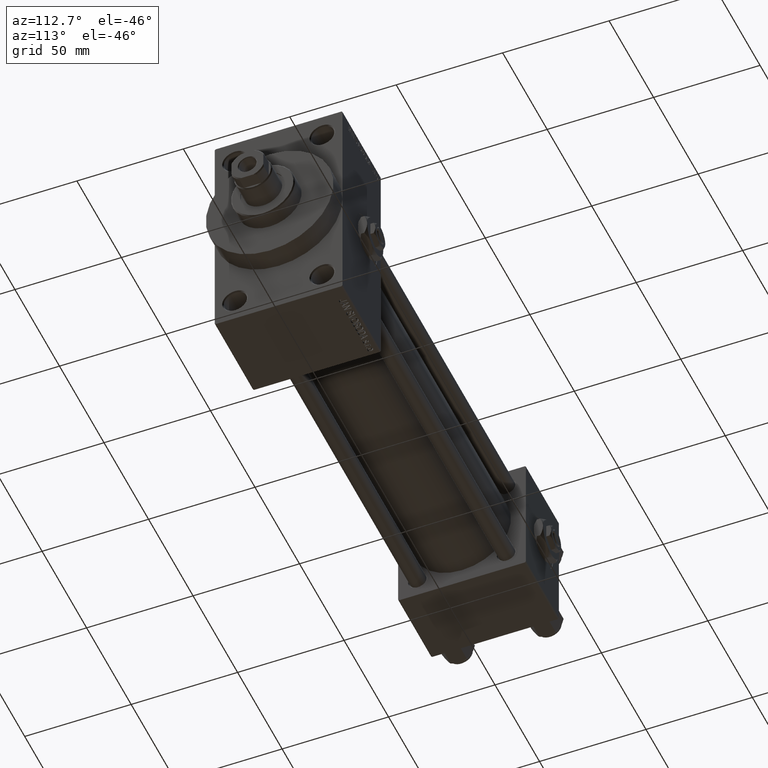
[diagram: clean part render]
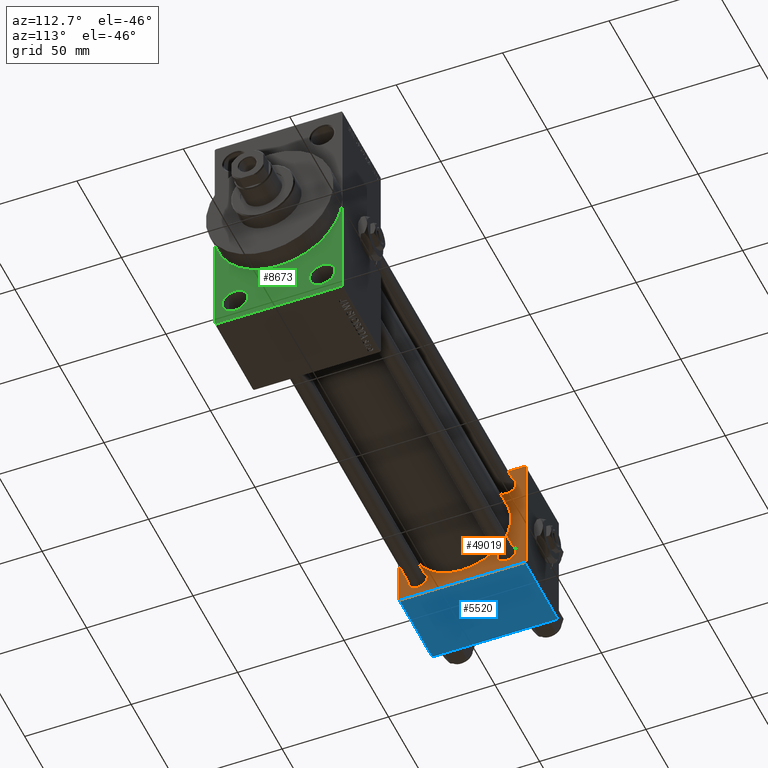
[diagram: same view with three faces highlighted in distinct colors, each labeled with its STEP entity id]
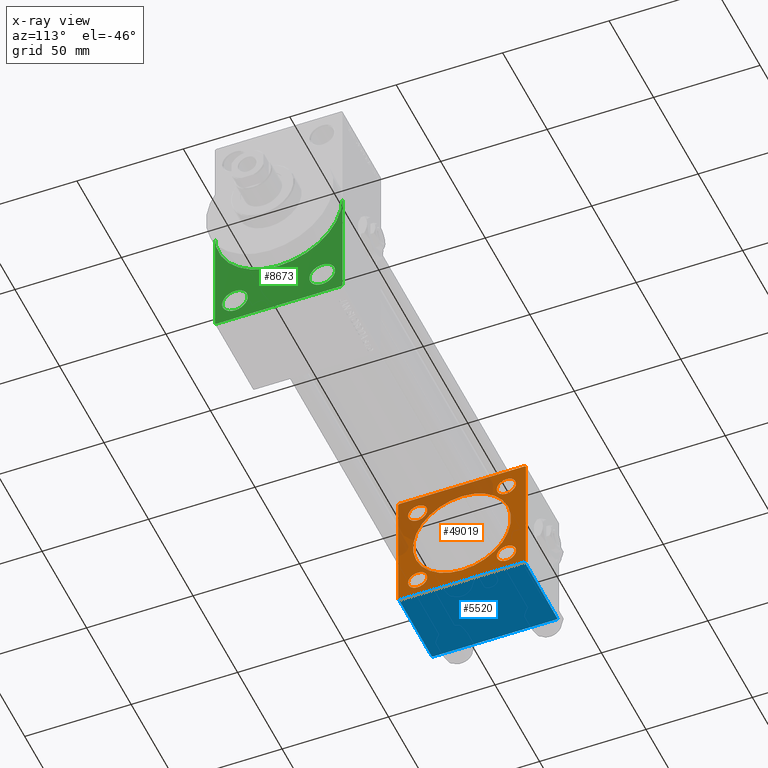
[diagram: x-ray of the same camera — body ghosted, the three highlighted faces saturated]
A machine part, auxiliary view with three faces highlighted in distinct colors.
The next image is the same camera in x-ray (body ghosted, the three faces saturated) — at least one of them is partly hidden behind the body in this view.
Their STEP definitions:

[orange] entity #49019 — the highlighted planar face has unit normal (-1, 0, 0).
#748 = CARTESIAN_POINT ( 'NONE',  ( 37.00000000000000000, -30.00000000000000000, 29.49999999999999289 ) ) ;
#850 = VERTEX_POINT ( 'NONE', #35365 ) ;
#979 = FACE_BOUND ( 'NONE', #18773, .T. ) ;
#1287 = ORIENTED_EDGE ( 'NONE', *, *, #7142, .T. ) ;
#1296 = DIRECTION ( 'NONE',  ( 1.000000000000000000, -0.000000000000000000, 0.000000000000000000 ) ) ;
#1733 = ORIENTED_EDGE ( 'NONE', *, *, #12668, .T. ) ;
#1964 = AXIS2_PLACEMENT_3D ( 'NONE', #48222, #40753, #33274 ) ;
#1965 = EDGE_CURVE ( 'NONE', #7538, #12054, #40691, .T. ) ;
#2868 = AXIS2_PLACEMENT_3D ( 'NONE', #37141, #21422, #2986 ) ;
#2986 = DIRECTION ( 'NONE',  ( 0.000000000000000000, 0.000000000000000000, 1.000000000000000000 ) ) ;
#3420 = CIRCLE ( 'NONE', #48796, 4.500000000000031974 ) ;
#3482 = VECTOR ( 'NONE', #7258, 1000.000000000000114 ) ;
#3817 = VERTEX_POINT ( 'NONE', #4821 ) ;
#3982 = ORIENTED_EDGE ( 'NONE', *, *, #12769, .T. ) ;
#4046 = CARTESIAN_POINT ( 'NONE',  ( 37.00000000000000000, 20.84999999999999787, 20.85000000000000142 ) ) ;
#4456 = CIRCLE ( 'NONE', #10852, 4.500000000000031974 ) ;
#4821 = CARTESIAN_POINT ( 'NONE',  ( 37.00000000000000000, 20.84999999999999787, 25.35000000000003340 ) ) ;
#4964 = DIRECTION ( 'NONE',  ( -0.000000000000000000, 0.000000000000000000, 1.000000000000000000 ) ) ;
#5207 = CARTESIAN_POINT ( 'NONE',  ( 37.00000000000000000, -30.00000000000000000, -29.50000000000001776 ) ) ;
#5758 = ORIENTED_EDGE ( 'NONE', *, *, #40928, .T. ) ;
#6653 = CARTESIAN_POINT ( 'NONE',  ( 37.00000000000000000, 20.84999999999999787, -25.35000000000003340 ) ) ;
#7066 = CARTESIAN_POINT ( 'NONE',  ( 37.00000000000000000, -20.84999999999999076, -25.35000000000003695 ) ) ;
#7142 = EDGE_CURVE ( 'NONE', #43068, #7575, #3420, .T. ) ;
#7258 = DIRECTION ( 'NONE',  ( -0.000000000000000000, -0.7071067811865474617, -0.7071067811865474617 ) ) ;
#7370 = DIRECTION ( 'NONE',  ( 0.000000000000000000, 0.000000000000000000, 1.000000000000000000 ) ) ;
#7448 = ORIENTED_EDGE ( 'NONE', *, *, #47278, .T. ) ;
#7538 = VERTEX_POINT ( 'NONE', #20046 ) ;
#7575 = VERTEX_POINT ( 'NONE', #7066 ) ;
#7765 = DIRECTION ( 'NONE',  ( -1.000000000000000000, 0.000000000000000000, -0.000000000000000000 ) ) ;
#8340 = VERTEX_POINT ( 'NONE', #36227 ) ;
#8417 = VERTEX_POINT ( 'NONE', #10578 ) ;
#8713 = EDGE_CURVE ( 'NONE', #8340, #8417, #10622, .T. ) ;
#8767 = CIRCLE ( 'NONE', #43661, 4.500000000000031974 ) ;
#8944 = EDGE_CURVE ( 'NONE', #39953, #7538, #34899, .T. ) ;
#8964 = CARTESIAN_POINT ( 'NONE',  ( 37.00000000000000000, 20.84999999999999787, -16.34999999999996945 ) ) ;
#9199 = ORIENTED_EDGE ( 'NONE', *, *, #34788, .F. ) ;
#9294 = CIRCLE ( 'NONE', #31608, 4.500000000000031974 ) ;
#9489 = VERTEX_POINT ( 'NONE', #6653 ) ;
#10099 = ORIENTED_EDGE ( 'NONE', *, *, #29064, .T. ) ;
#10532 = DIRECTION ( 'NONE',  ( 0.000000000000000000, 0.000000000000000000, -1.000000000000000000 ) ) ;
#10578 = CARTESIAN_POINT ( 'NONE',  ( 37.00000000000000711, 2.146024240737016609E-16, -23.00000000000000000 ) ) ;
#10622 = CIRCLE ( 'NONE', #46432, 23.00000000000000000 ) ;
#10817 = CARTESIAN_POINT ( 'NONE',  ( 37.00000000000000000, -20.84999999999999076, 25.35000000000003695 ) ) ;
#10852 = AXIS2_PLACEMENT_3D ( 'NONE', #23053, #34763, #7370 ) ;
#11328 = VECTOR ( 'NONE', #10532, 1000.000000000000000 ) ;
#11403 = CARTESIAN_POINT ( 'NONE',  ( 37.00000000000000000, 20.84999999999999787, 20.85000000000000142 ) ) ;
#11803 = DIRECTION ( 'NONE',  ( -1.000000000000000000, 0.000000000000000000, -0.000000000000000000 ) ) ;
#12054 = VERTEX_POINT ( 'NONE', #5207 ) ;
#12456 = FACE_BOUND ( 'NONE', #36550, .T. ) ;
#12668 = EDGE_CURVE ( 'NONE', #13680, #39646, #44991, .T. ) ;
#12720 = CARTESIAN_POINT ( 'NONE',  ( 37.00000000000000000, -20.84999999999999076, -16.34999999999997300 ) ) ;
#12769 = EDGE_CURVE ( 'NONE', #850, #45823, #30509, .T. ) ;
#13292 = ORIENTED_EDGE ( 'NONE', *, *, #15641, .T. ) ;
#13680 = VERTEX_POINT ( 'NONE', #47053 ) ;
#13838 = CARTESIAN_POINT ( 'NONE',  ( 37.00000000000000000, -29.50000000000001066, -30.00000000000000711 ) ) ;
#14065 = EDGE_CURVE ( 'NONE', #850, #41661, #29974, .T. ) ;
#14091 = DIRECTION ( 'NONE',  ( 0.000000000000000000, 0.7071067811865474617, -0.7071067811865474617 ) ) ;
#14253 = DIRECTION ( 'NONE',  ( -1.000000000000000000, 0.000000000000000000, -0.000000000000000000 ) ) ;
#14285 = AXIS2_PLACEMENT_3D ( 'NONE', #4046, #39182, #19981 ) ;
#15382 = DIRECTION ( 'NONE',  ( -1.000000000000000000, 0.000000000000000000, -0.000000000000000000 ) ) ;
#15571 = CARTESIAN_POINT ( 'NONE',  ( 37.00000000000000000, 29.49999999999999289, 30.00000000000000000 ) ) ;
#15614 = DIRECTION ( 'NONE',  ( -1.000000000000000000, 0.000000000000000000, -0.000000000000000000 ) ) ;
#15641 = EDGE_CURVE ( 'NONE', #24818, #9489, #29931, .T. ) ;
#16185 = CARTESIAN_POINT ( 'NONE',  ( 37.00000000000000000, 0.000000000000000000, 0.000000000000000000 ) ) ;
#16335 = LINE ( 'NONE', #35040, #31917 ) ;
#16664 = FACE_BOUND ( 'NONE', #36701, .T. ) ;
#16726 = DIRECTION ( 'NONE',  ( 0.000000000000000000, -1.000000000000000000, -1.156482317317871725E-16 ) ) ;
#16747 = ORIENTED_EDGE ( 'NONE', *, *, #26494, .T. ) ;
#16960 = EDGE_LOOP ( 'NONE', ( #1733, #10099 ) ) ;
#17450 = CARTESIAN_POINT ( 'NONE',  ( 37.00000000000000000, 29.99999999999999289, 30.00000000000000000 ) ) ;
#17451 = AXIS2_PLACEMENT_3D ( 'NONE', #25223, #14253, #44674 ) ;
#18266 = CIRCLE ( 'NONE', #14285, 4.500000000000031974 ) ;
#18773 = EDGE_LOOP ( 'NONE', ( #16747, #1287 ) ) ;
#19224 = DIRECTION ( 'NONE',  ( 0.000000000000000000, -1.000000000000000000, -1.156482317317871725E-16 ) ) ;
#19277 = DIRECTION ( 'NONE',  ( -0.000000000000000000, 0.7071067811865574537, 0.7071067811865376918 ) ) ;
#19912 = ORIENTED_EDGE ( 'NONE', *, *, #8944, .T. ) ;
#19981 = DIRECTION ( 'NONE',  ( 0.000000000000000000, 0.000000000000000000, 1.000000000000000000 ) ) ;
#20046 = CARTESIAN_POINT ( 'NONE',  ( 37.00000000000000000, -30.00000000000000000, 29.49999999999999289 ) ) ;
#20713 = LINE ( 'NONE', #17450, #40551 ) ;
#20865 = EDGE_CURVE ( 'NONE', #9489, #24818, #4456, .T. ) ;
#21422 = DIRECTION ( 'NONE',  ( 1.000000000000000000, -0.000000000000000000, 0.000000000000000000 ) ) ;
#21990 = CARTESIAN_POINT ( 'NONE',  ( 37.00000000000000000, 29.99999999999999289, -30.00000000000000000 ) ) ;
#23053 = CARTESIAN_POINT ( 'NONE',  ( 37.00000000000000000, 20.84999999999999787, -20.85000000000000142 ) ) ;
#23571 = DIRECTION ( 'NONE',  ( 0.000000000000000000, 0.000000000000000000, -1.000000000000000000 ) ) ;
#23666 = FACE_BOUND ( 'NONE', #16960, .T. ) ;
#23909 = FACE_OUTER_BOUND ( 'NONE', #42416, .T. ) ;
#24470 = VERTEX_POINT ( 'NONE', #15571 ) ;
#24818 = VERTEX_POINT ( 'NONE', #8964 ) ;
#25223 = CARTESIAN_POINT ( 'NONE',  ( 37.00000000000000000, 20.84999999999999787, -20.85000000000000142 ) ) ;
#25421 = EDGE_LOOP ( 'NONE', ( #44458, #13292 ) ) ;
#25467 = ORIENTED_EDGE ( 'NONE', *, *, #45635, .T. ) ;
#26032 = CARTESIAN_POINT ( 'NONE',  ( 37.00000000000000000, 29.99999999999999289, -29.50000000000000000 ) ) ;
#26215 = DIRECTION ( 'NONE',  ( 0.000000000000000000, 0.000000000000000000, 1.000000000000000000 ) ) ;
#26494 = EDGE_CURVE ( 'NONE', #7575, #43068, #46883, .T. ) ;
#27235 = EDGE_CURVE ( 'NONE', #3817, #43162, #18266, .T. ) ;
#27354 = EDGE_CURVE ( 'NONE', #24470, #39953, #20713, .T. ) ;
#27356 = CARTESIAN_POINT ( 'NONE',  ( 37.00000000000000000, 29.99999999999999289, 29.50000000000000000 ) ) ;
#27406 = PLANE ( 'NONE',  #48448 ) ;
#27653 = DIRECTION ( 'NONE',  ( 0.000000000000000000, -0.7071067811865474617, 0.7071067811865474617 ) ) ;
#27898 = CARTESIAN_POINT ( 'NONE',  ( 37.00000000000000000, 29.49999999999999289, 30.00000000000000000 ) ) ;
#28210 = ORIENTED_EDGE ( 'NONE', *, *, #27235, .T. ) ;
#28546 = VERTEX_POINT ( 'NONE', #27356 ) ;
#29064 = EDGE_CURVE ( 'NONE', #39646, #13680, #8767, .T. ) ;
#29433 = ORIENTED_EDGE ( 'NONE', *, *, #44109, .F. ) ;
#29931 = CIRCLE ( 'NONE', #17451, 4.500000000000031974 ) ;
#29974 = LINE ( 'NONE', #21990, #38640 ) ;
#30509 = LINE ( 'NONE', #26032, #42580 ) ;
#30828 = DIRECTION ( 'NONE',  ( 0.000000000000000000, 0.000000000000000000, 1.000000000000000000 ) ) ;
#30971 = AXIS2_PLACEMENT_3D ( 'NONE', #41916, #7765, #26215 ) ;
#31154 = FACE_BOUND ( 'NONE', #25421, .T. ) ;
#31608 = AXIS2_PLACEMENT_3D ( 'NONE', #11403, #15614, #30828 ) ;
#31917 = VECTOR ( 'NONE', #23571, 1000.000000000000000 ) ;
#33274 = DIRECTION ( 'NONE',  ( 0.000000000000000000, 0.000000000000000000, 1.000000000000000000 ) ) ;
#33935 = CIRCLE ( 'NONE', #2868, 23.00000000000000000 ) ;
#34763 = DIRECTION ( 'NONE',  ( -1.000000000000000000, 0.000000000000000000, -0.000000000000000000 ) ) ;
#34788 = EDGE_CURVE ( 'NONE', #28546, #45823, #16335, .T. ) ;
#34899 = LINE ( 'NONE', #748, #3482 ) ;
#35040 = CARTESIAN_POINT ( 'NONE',  ( 37.00000000000000000, 29.99999999999999289, 30.00000000000000000 ) ) ;
#35365 = CARTESIAN_POINT ( 'NONE',  ( 37.00000000000000000, 29.49999999999997868, -30.00000000000000000 ) ) ;
#35442 = CARTESIAN_POINT ( 'NONE',  ( 37.00000000000000711, -2.602085213965210642E-15, 0.000000000000000000 ) ) ;
#35614 = LINE ( 'NONE', #27898, #46472 ) ;
#35923 = DIRECTION ( 'NONE',  ( 0.000000000000000000, 0.000000000000000000, 1.000000000000000000 ) ) ;
#36046 = CARTESIAN_POINT ( 'NONE',  ( 37.00000000000000000, -29.49999999999998579, 29.99999999999999289 ) ) ;
#36227 = CARTESIAN_POINT ( 'NONE',  ( 37.00000000000000711, -2.602085213965210642E-15, 23.00000000000000000 ) ) ;
#36550 = EDGE_LOOP ( 'NONE', ( #41453, #29433 ) ) ;
#36701 = EDGE_LOOP ( 'NONE', ( #25467, #28210 ) ) ;
#37141 = CARTESIAN_POINT ( 'NONE',  ( 37.00000000000000711, -2.602085213965210642E-15, 0.000000000000000000 ) ) ;
#38640 = VECTOR ( 'NONE', #19224, 1000.000000000000000 ) ;
#39122 = DIRECTION ( 'NONE',  ( -1.000000000000000000, 0.000000000000000000, -0.000000000000000000 ) ) ;
#39182 = DIRECTION ( 'NONE',  ( -1.000000000000000000, 0.000000000000000000, -0.000000000000000000 ) ) ;
#39646 = VERTEX_POINT ( 'NONE', #10817 ) ;
#39953 = VERTEX_POINT ( 'NONE', #36046 ) ;
#40480 = CARTESIAN_POINT ( 'NONE',  ( 37.00000000000000000, -29.50000000000000000, -30.00000000000000711 ) ) ;
#40551 = VECTOR ( 'NONE', #16726, 1000.000000000000000 ) ;
#40691 = LINE ( 'NONE', #49153, #11328 ) ;
#40753 = DIRECTION ( 'NONE',  ( -1.000000000000000000, 0.000000000000000000, -0.000000000000000000 ) ) ;
#40928 = EDGE_CURVE ( 'NONE', #28546, #24470, #35614, .T. ) ;
#41268 = CARTESIAN_POINT ( 'NONE',  ( 37.00000000000000000, 29.99999999999999289, -29.50000000000000000 ) ) ;
#41453 = ORIENTED_EDGE ( 'NONE', *, *, #8713, .F. ) ;
#41479 = CARTESIAN_POINT ( 'NONE',  ( 37.00000000000000000, -20.84999999999999076, 20.85000000000000497 ) ) ;
#41661 = VERTEX_POINT ( 'NONE', #40480 ) ;
#41904 = ORIENTED_EDGE ( 'NONE', *, *, #14065, .F. ) ;
#41916 = CARTESIAN_POINT ( 'NONE',  ( 37.00000000000000000, -20.84999999999999076, -20.85000000000000497 ) ) ;
#42416 = EDGE_LOOP ( 'NONE', ( #41904, #3982, #9199, #5758, #42427, #19912, #48073, #7448 ) ) ;
#42427 = ORIENTED_EDGE ( 'NONE', *, *, #27354, .T. ) ;
#42580 = VECTOR ( 'NONE', #19277, 999.9999999999998863 ) ;
#43068 = VERTEX_POINT ( 'NONE', #12720 ) ;
#43162 = VERTEX_POINT ( 'NONE', #48349 ) ;
#43661 = AXIS2_PLACEMENT_3D ( 'NONE', #41479, #11803, #45947 ) ;
#44109 = EDGE_CURVE ( 'NONE', #8417, #8340, #33935, .T. ) ;
#44392 = VECTOR ( 'NONE', #14091, 1000.000000000000114 ) ;
#44458 = ORIENTED_EDGE ( 'NONE', *, *, #20865, .T. ) ;
#44516 = LINE ( 'NONE', #13838, #44392 ) ;
#44674 = DIRECTION ( 'NONE',  ( 0.000000000000000000, 0.000000000000000000, 1.000000000000000000 ) ) ;
#44991 = CIRCLE ( 'NONE', #1964, 4.500000000000031974 ) ;
#45564 = DIRECTION ( 'NONE',  ( 0.000000000000000000, 0.000000000000000000, 1.000000000000000000 ) ) ;
#45635 = EDGE_CURVE ( 'NONE', #43162, #3817, #9294, .T. ) ;
#45823 = VERTEX_POINT ( 'NONE', #41268 ) ;
#45947 = DIRECTION ( 'NONE',  ( 0.000000000000000000, 0.000000000000000000, 1.000000000000000000 ) ) ;
#46432 = AXIS2_PLACEMENT_3D ( 'NONE', #35442, #1296, #35923 ) ;
#46472 = VECTOR ( 'NONE', #27653, 1000.000000000000114 ) ;
#46536 = CARTESIAN_POINT ( 'NONE',  ( 37.00000000000000000, -20.84999999999999076, -20.85000000000000497 ) ) ;
#46883 = CIRCLE ( 'NONE', #30971, 4.500000000000031974 ) ;
#47053 = CARTESIAN_POINT ( 'NONE',  ( 37.00000000000000000, -20.84999999999999076, 16.34999999999997300 ) ) ;
#47278 = EDGE_CURVE ( 'NONE', #12054, #41661, #44516, .T. ) ;
#48073 = ORIENTED_EDGE ( 'NONE', *, *, #1965, .T. ) ;
#48222 = CARTESIAN_POINT ( 'NONE',  ( 37.00000000000000000, -20.84999999999999076, 20.85000000000000497 ) ) ;
#48349 = CARTESIAN_POINT ( 'NONE',  ( 37.00000000000000000, 20.84999999999999787, 16.34999999999996945 ) ) ;
#48448 = AXIS2_PLACEMENT_3D ( 'NONE', #16185, #39122, #4964 ) ;
#48796 = AXIS2_PLACEMENT_3D ( 'NONE', #46536, #15382, #45564 ) ;
#49019 = ADVANCED_FACE ( 'NONE', ( #979, #31154, #23666, #16664, #12456, #23909 ), #27406, .F. ) ;
#49153 = CARTESIAN_POINT ( 'NONE',  ( 37.00000000000000000, -30.00000000000000000, 29.99999999999999289 ) ) ;

[blue] entity #5520 — the highlighted planar face has unit normal (0, 0, -1).
#850 = VERTEX_POINT ( 'NONE', #35365 ) ;
#2074 = DIRECTION ( 'NONE',  ( 0.000000000000000000, -1.000000000000000000, -1.156482317317871725E-16 ) ) ;
#5321 = ORIENTED_EDGE ( 'NONE', *, *, #14065, .T. ) ;
#5520 = ADVANCED_FACE ( 'NONE', ( #30589 ), #45796, .T. ) ;
#5617 = EDGE_CURVE ( 'NONE', #28376, #850, #9864, .T. ) ;
#5871 = CARTESIAN_POINT ( 'NONE',  ( 37.00000000000000000, 29.99999999999999289, -30.00000000000000000 ) ) ;
#7107 = ORIENTED_EDGE ( 'NONE', *, *, #5617, .T. ) ;
#9864 = LINE ( 'NONE', #32051, #37618 ) ;
#10620 = CARTESIAN_POINT ( 'NONE',  ( 0.000000000000000000, -29.50000000000001066, -30.00000000000000711 ) ) ;
#14065 = EDGE_CURVE ( 'NONE', #850, #41661, #29974, .T. ) ;
#14092 = LINE ( 'NONE', #10620, #22855 ) ;
#17619 = AXIS2_PLACEMENT_3D ( 'NONE', #5871, #28312, #39774 ) ;
#19008 = CARTESIAN_POINT ( 'NONE',  ( 0.000000000000000000, 29.49999999999997868, -30.00000000000000000 ) ) ;
#19224 = DIRECTION ( 'NONE',  ( 0.000000000000000000, -1.000000000000000000, -1.156482317317871725E-16 ) ) ;
#19250 = EDGE_LOOP ( 'NONE', ( #27992, #7107, #5321, #27488 ) ) ;
#21990 = CARTESIAN_POINT ( 'NONE',  ( 37.00000000000000000, 29.99999999999999289, -30.00000000000000000 ) ) ;
#22199 = LINE ( 'NONE', #28261, #42457 ) ;
#22855 = VECTOR ( 'NONE', #25814, 1000.000000000000000 ) ;
#24570 = DIRECTION ( 'NONE',  ( 1.000000000000000000, 0.000000000000000000, 0.000000000000000000 ) ) ;
#25433 = VERTEX_POINT ( 'NONE', #40226 ) ;
#25814 = DIRECTION ( 'NONE',  ( -1.000000000000000000, 0.000000000000000000, 0.000000000000000000 ) ) ;
#27488 = ORIENTED_EDGE ( 'NONE', *, *, #45816, .T. ) ;
#27992 = ORIENTED_EDGE ( 'NONE', *, *, #40576, .F. ) ;
#28261 = CARTESIAN_POINT ( 'NONE',  ( 0.000000000000000000, 29.99999999999999289, -30.00000000000000000 ) ) ;
#28312 = DIRECTION ( 'NONE',  ( 0.000000000000000000, 1.156482317317871725E-16, -1.000000000000000000 ) ) ;
#28376 = VERTEX_POINT ( 'NONE', #19008 ) ;
#29974 = LINE ( 'NONE', #21990, #38640 ) ;
#30589 = FACE_OUTER_BOUND ( 'NONE', #19250, .T. ) ;
#32051 = CARTESIAN_POINT ( 'NONE',  ( 37.00000000000000000, 29.49999999999997868, -30.00000000000000000 ) ) ;
#35365 = CARTESIAN_POINT ( 'NONE',  ( 37.00000000000000000, 29.49999999999997868, -30.00000000000000000 ) ) ;
#37618 = VECTOR ( 'NONE', #24570, 1000.000000000000000 ) ;
#38640 = VECTOR ( 'NONE', #19224, 1000.000000000000000 ) ;
#39774 = DIRECTION ( 'NONE',  ( 0.000000000000000000, 1.000000000000000000, 1.156482317317871725E-16 ) ) ;
#40226 = CARTESIAN_POINT ( 'NONE',  ( 0.000000000000000000, -29.50000000000000000, -30.00000000000000711 ) ) ;
#40480 = CARTESIAN_POINT ( 'NONE',  ( 37.00000000000000000, -29.50000000000000000, -30.00000000000000711 ) ) ;
#40576 = EDGE_CURVE ( 'NONE', #28376, #25433, #22199, .T. ) ;
#41661 = VERTEX_POINT ( 'NONE', #40480 ) ;
#42457 = VECTOR ( 'NONE', #2074, 1000.000000000000000 ) ;
#45796 = PLANE ( 'NONE',  #17619 ) ;
#45816 = EDGE_CURVE ( 'NONE', #41661, #25433, #14092, .T. ) ;

[green] entity #8673 — the highlighted planar face has unit normal (-1, 0, 0).
#245 = LINE ( 'NONE', #15441, #43201 ) ;
#1052 = FACE_OUTER_BOUND ( 'NONE', #20191, .T. ) ;
#1321 = CIRCLE ( 'NONE', #7705, 5.999999999999977796 ) ;
#1602 = EDGE_CURVE ( 'NONE', #38292, #9242, #9336, .T. ) ;
#1637 = CARTESIAN_POINT ( 'NONE',  ( 243.0000000000000000, 3.673940397442059178E-15, -30.00000000000000000 ) ) ;
#1701 = CARTESIAN_POINT ( 'NONE',  ( 243.0000000000000000, -30.00000000000000000, 0.000000000000000000 ) ) ;
#2057 = LINE ( 'NONE', #2310, #30566 ) ;
#2310 = CARTESIAN_POINT ( 'NONE',  ( 243.0000000000000000, 29.99999999999999645, -54.49999999999999289 ) ) ;
#2641 = CARTESIAN_POINT ( 'NONE',  ( 243.0000000000000000, 0.000000000000000000, 0.000000000000000000 ) ) ;
#2696 = VECTOR ( 'NONE', #42592, 1000.000000000000000 ) ;
#3162 = EDGE_CURVE ( 'NONE', #11488, #5396, #8970, .T. ) ;
#3398 = EDGE_CURVE ( 'NONE', #19937, #13821, #24857, .T. ) ;
#4021 = DIRECTION ( 'NONE',  ( 1.000000000000000000, 0.000000000000000000, 0.000000000000000000 ) ) ;
#4510 = CARTESIAN_POINT ( 'NONE',  ( 243.0000000000000000, 0.000000000000000000, 0.000000000000000000 ) ) ;
#4642 = CARTESIAN_POINT ( 'NONE',  ( 243.0000000000000000, 20.50000000000000000, -43.50000000000000000 ) ) ;
#5396 = VERTEX_POINT ( 'NONE', #36587 ) ;
#5430 = CARTESIAN_POINT ( 'NONE',  ( 243.0000000000000000, 29.49999999999996803, -54.49999999999999289 ) ) ;
#5645 = DIRECTION ( 'NONE',  ( 0.000000000000000000, 0.000000000000000000, -1.000000000000000000 ) ) ;
#5680 = CIRCLE ( 'NONE', #41512, 5.999999999999977796 ) ;
#5880 = DIRECTION ( 'NONE',  ( 0.000000000000000000, 0.000000000000000000, -1.000000000000000000 ) ) ;
#7226 = CARTESIAN_POINT ( 'NONE',  ( 243.0000000000000000, 29.99999999999999645, -53.99999999999999289 ) ) ;
#7705 = AXIS2_PLACEMENT_3D ( 'NONE', #4642, #8148, #11646 ) ;
#7980 = DIRECTION ( 'NONE',  ( 0.000000000000000000, 0.000000000000000000, -1.000000000000000000 ) ) ;
#8148 = DIRECTION ( 'NONE',  ( -1.000000000000000000, 0.000000000000000000, -0.000000000000000000 ) ) ;
#8367 = DIRECTION ( 'NONE',  ( -1.000000000000000000, 0.000000000000000000, -0.000000000000000000 ) ) ;
#8673 = ADVANCED_FACE ( 'NONE', ( #27722, #42931, #1052 ), #31949, .F. ) ;
#8970 = CIRCLE ( 'NONE', #36832, 30.00000000000000000 ) ;
#9242 = VERTEX_POINT ( 'NONE', #33867 ) ;
#9336 = LINE ( 'NONE', #14064, #20835 ) ;
#9815 = CIRCLE ( 'NONE', #48036, 30.00000000000000000 ) ;
#10191 = ORIENTED_EDGE ( 'NONE', *, *, #40223, .F. ) ;
#10323 = EDGE_CURVE ( 'NONE', #14519, #18001, #14697, .T. ) ;
#10808 = EDGE_CURVE ( 'NONE', #14519, #9242, #2057, .T. ) ;
#11254 = EDGE_LOOP ( 'NONE', ( #46899, #39089 ) ) ;
#11488 = VERTEX_POINT ( 'NONE', #1637 ) ;
#11594 = DIRECTION ( 'NONE',  ( -1.000000000000000000, 0.000000000000000000, -0.000000000000000000 ) ) ;
#11646 = DIRECTION ( 'NONE',  ( 0.000000000000000000, 0.000000000000000000, 1.000000000000000000 ) ) ;
#11868 = CARTESIAN_POINT ( 'NONE',  ( 243.0000000000000000, -20.50000000000000000, -43.50000000000000000 ) ) ;
#12185 = DIRECTION ( 'NONE',  ( -1.000000000000000000, 0.000000000000000000, -0.000000000000000000 ) ) ;
#12976 = AXIS2_PLACEMENT_3D ( 'NONE', #13005, #39192, #28699 ) ;
#13005 = CARTESIAN_POINT ( 'NONE',  ( 243.0000000000000000, 0.000000000000000000, 0.000000000000000000 ) ) ;
#13692 = VECTOR ( 'NONE', #5645, 1000.000000000000000 ) ;
#13821 = VERTEX_POINT ( 'NONE', #37813 ) ;
#14064 = CARTESIAN_POINT ( 'NONE',  ( 243.0000000000000000, -29.50000000000002842, -54.50000000000000000 ) ) ;
#14519 = VERTEX_POINT ( 'NONE', #5430 ) ;
#14697 = LINE ( 'NONE', #7226, #2696 ) ;
#14838 = DIRECTION ( 'NONE',  ( 0.000000000000000000, 0.000000000000000000, 1.000000000000000000 ) ) ;
#15172 = DIRECTION ( 'NONE',  ( 0.000000000000000000, 0.000000000000000000, 1.000000000000000000 ) ) ;
#15441 = CARTESIAN_POINT ( 'NONE',  ( 243.0000000000000000, -30.00000000000000000, 54.50000000000000000 ) ) ;
#15662 = CARTESIAN_POINT ( 'NONE',  ( 243.0000000000000000, -20.50000000000000000, -43.50000000000000000 ) ) ;
#17745 = CARTESIAN_POINT ( 'NONE',  ( 243.0000000000000000, 29.99999999999999645, -53.99999999999999289 ) ) ;
#18001 = VERTEX_POINT ( 'NONE', #17745 ) ;
#19335 = CARTESIAN_POINT ( 'NONE',  ( 243.0000000000000000, 20.50000000000000000, -49.49999999999997158 ) ) ;
#19937 = VERTEX_POINT ( 'NONE', #42787 ) ;
#20191 = EDGE_LOOP ( 'NONE', ( #30944, #48844, #45357, #25355, #35416, #36388, #10191 ) ) ;
#20835 = VECTOR ( 'NONE', #43487, 1000.000000000000000 ) ;
#20845 = CARTESIAN_POINT ( 'NONE',  ( 243.0000000000000000, 29.99999999999999645, 54.49999999999999289 ) ) ;
#22488 = EDGE_LOOP ( 'NONE', ( #36646, #25960 ) ) ;
#23131 = AXIS2_PLACEMENT_3D ( 'NONE', #11868, #8367, #46256 ) ;
#24723 = CIRCLE ( 'NONE', #23131, 5.999999999999977796 ) ;
#24857 = CIRCLE ( 'NONE', #31249, 5.999999999999977796 ) ;
#25355 = ORIENTED_EDGE ( 'NONE', *, *, #10323, .T. ) ;
#25960 = ORIENTED_EDGE ( 'NONE', *, *, #33767, .T. ) ;
#26305 = CARTESIAN_POINT ( 'NONE',  ( 243.0000000000000000, 20.50000000000000000, -43.50000000000000000 ) ) ;
#27722 = FACE_BOUND ( 'NONE', #22488, .T. ) ;
#28699 = DIRECTION ( 'NONE',  ( -0.000000000000000000, 0.000000000000000000, 1.000000000000000000 ) ) ;
#30566 = VECTOR ( 'NONE', #43454, 1000.000000000000000 ) ;
#30944 = ORIENTED_EDGE ( 'NONE', *, *, #38722, .T. ) ;
#31249 = AXIS2_PLACEMENT_3D ( 'NONE', #15662, #12185, #15172 ) ;
#31949 = PLANE ( 'NONE',  #12976 ) ;
#32567 = LINE ( 'NONE', #20845, #13692 ) ;
#33665 = VERTEX_POINT ( 'NONE', #19335 ) ;
#33767 = EDGE_CURVE ( 'NONE', #13821, #19937, #24723, .T. ) ;
#33867 = CARTESIAN_POINT ( 'NONE',  ( 243.0000000000000000, -29.50000000000002842, -54.50000000000000000 ) ) ;
#35292 = EDGE_CURVE ( 'NONE', #33665, #39920, #5680, .T. ) ;
#35416 = ORIENTED_EDGE ( 'NONE', *, *, #36985, .F. ) ;
#36388 = ORIENTED_EDGE ( 'NONE', *, *, #3162, .F. ) ;
#36587 = CARTESIAN_POINT ( 'NONE',  ( 243.0000000000000000, 30.00000000000000000, 0.000000000000000000 ) ) ;
#36646 = ORIENTED_EDGE ( 'NONE', *, *, #3398, .T. ) ;
#36832 = AXIS2_PLACEMENT_3D ( 'NONE', #4510, #4021, #42647 ) ;
#36985 = EDGE_CURVE ( 'NONE', #5396, #18001, #32567, .T. ) ;
#37813 = CARTESIAN_POINT ( 'NONE',  ( 243.0000000000000000, -20.50000000000000000, -37.50000000000002132 ) ) ;
#38292 = VERTEX_POINT ( 'NONE', #40530 ) ;
#38722 = EDGE_CURVE ( 'NONE', #38801, #38292, #245, .T. ) ;
#38801 = VERTEX_POINT ( 'NONE', #1701 ) ;
#39089 = ORIENTED_EDGE ( 'NONE', *, *, #45578, .T. ) ;
#39192 = DIRECTION ( 'NONE',  ( -1.000000000000000000, 0.000000000000000000, -0.000000000000000000 ) ) ;
#39920 = VERTEX_POINT ( 'NONE', #43535 ) ;
#40033 = DIRECTION ( 'NONE',  ( 1.000000000000000000, 0.000000000000000000, 0.000000000000000000 ) ) ;
#40223 = EDGE_CURVE ( 'NONE', #38801, #11488, #9815, .T. ) ;
#40530 = CARTESIAN_POINT ( 'NONE',  ( 243.0000000000000000, -30.00000000000000000, -54.00000000000001421 ) ) ;
#41512 = AXIS2_PLACEMENT_3D ( 'NONE', #26305, #11594, #14838 ) ;
#42592 = DIRECTION ( 'NONE',  ( -0.000000000000000000, 0.7071067811865672237, 0.7071067811865279218 ) ) ;
#42647 = DIRECTION ( 'NONE',  ( 0.000000000000000000, 0.000000000000000000, -1.000000000000000000 ) ) ;
#42787 = CARTESIAN_POINT ( 'NONE',  ( 243.0000000000000000, -20.50000000000000000, -49.49999999999997158 ) ) ;
#42931 = FACE_BOUND ( 'NONE', #11254, .T. ) ;
#43201 = VECTOR ( 'NONE', #7980, 1000.000000000000000 ) ;
#43454 = DIRECTION ( 'NONE',  ( 0.000000000000000000, -1.000000000000000000, -1.156482317317871478E-16 ) ) ;
#43487 = DIRECTION ( 'NONE',  ( 0.000000000000000000, 0.7071067811865352493, -0.7071067811865597852 ) ) ;
#43535 = CARTESIAN_POINT ( 'NONE',  ( 243.0000000000000000, 20.50000000000000000, -37.50000000000002132 ) ) ;
#45357 = ORIENTED_EDGE ( 'NONE', *, *, #10808, .F. ) ;
#45578 = EDGE_CURVE ( 'NONE', #39920, #33665, #1321, .T. ) ;
#46256 = DIRECTION ( 'NONE',  ( 0.000000000000000000, 0.000000000000000000, 1.000000000000000000 ) ) ;
#46899 = ORIENTED_EDGE ( 'NONE', *, *, #35292, .T. ) ;
#48036 = AXIS2_PLACEMENT_3D ( 'NONE', #2641, #40033, #5880 ) ;
#48844 = ORIENTED_EDGE ( 'NONE', *, *, #1602, .T. ) ;